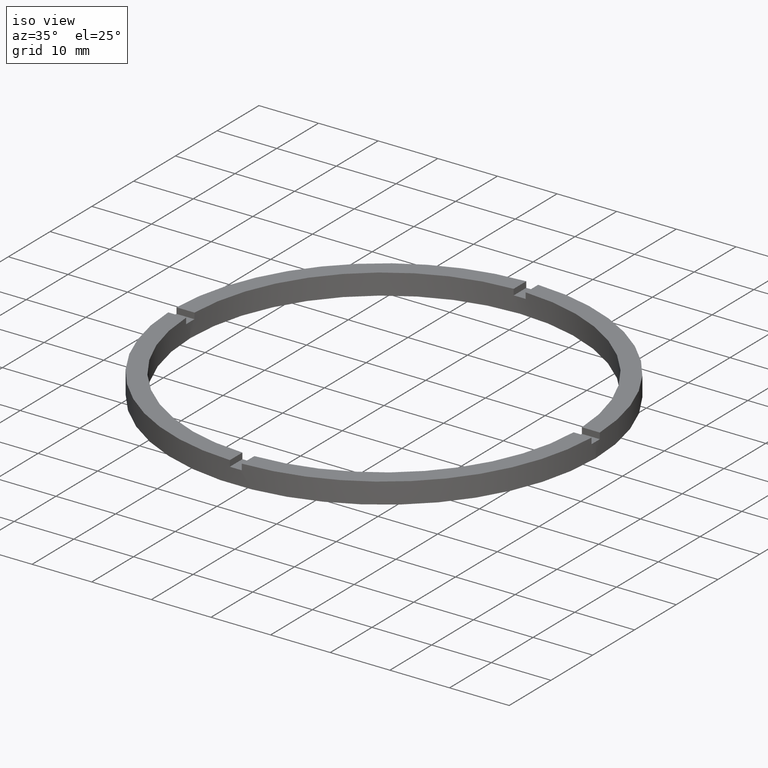
[diagram: clean part render]
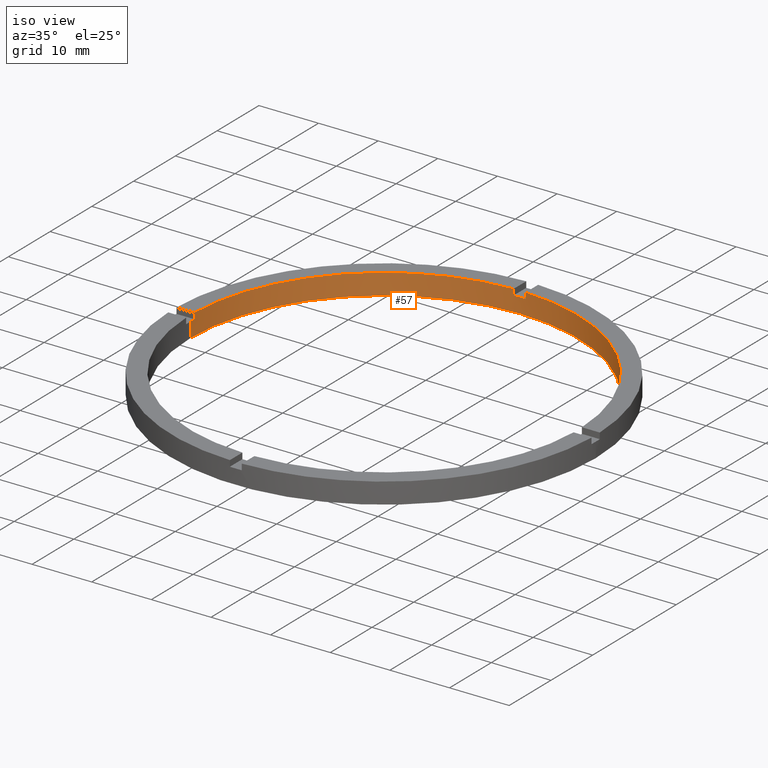
[diagram: same view with one face highlighted and labeled with its STEP entity id]
A machine part, iso view. The second image highlights one B-rep face of the part: STEP entity #57.
In plain terms, the highlighted cylindrical surface (partial cylindrical patch) has radius 32.5 mm, axis along (-0, -0, -1).
Its self-contained STEP definition (entity closure, byte-faithful):
#8 = CARTESIAN_POINT ( 'NONE',  ( 0.000000000000000000, 0.000000000000000000, 2.500000000000000000 ) ) ;
#12 = CARTESIAN_POINT ( 'NONE',  ( -32.50000000000000000, 0.000000000000000000, 3.500000000000000000 ) ) ;
#15 = CARTESIAN_POINT ( 'NONE',  ( 0.9999999999999751310, 32.48461174156157227, 2.500000000000000000 ) ) ;
#27 = DIRECTION ( 'NONE',  ( 0.000000000000000000, 0.000000000000000000, 1.000000000000000000 ) ) ;
#41 = EDGE_CURVE ( 'NONE', #183, #475, #696, .T. ) ;
#44 = CARTESIAN_POINT ( 'NONE',  ( 0.000000000000000000, 0.000000000000000000, 3.500000000000000000 ) ) ;
#49 = DIRECTION ( 'NONE',  ( -0.000000000000000000, -0.000000000000000000, -1.000000000000000000 ) ) ;
#57 = ADVANCED_FACE ( 'NONE', ( #408 ), #447, .F. ) ;
#67 = VECTOR ( 'NONE', #434, 1000.000000000000000 ) ;
#77 = DIRECTION ( 'NONE',  ( 1.000000000000000000, 0.000000000000000000, 0.000000000000000000 ) ) ;
#85 = ORIENTED_EDGE ( 'NONE', *, *, #558, .T. ) ;
#91 = ORIENTED_EDGE ( 'NONE', *, *, #567, .T. ) ;
#92 = ORIENTED_EDGE ( 'NONE', *, *, #736, .T. ) ;
#94 = ORIENTED_EDGE ( 'NONE', *, *, #131, .T. ) ;
#105 = EDGE_CURVE ( 'NONE', #725, #708, #707, .T. ) ;
#106 = DIRECTION ( 'NONE',  ( -0.000000000000000000, -0.000000000000000000, -1.000000000000000000 ) ) ;
#112 = DIRECTION ( 'NONE',  ( 1.000000000000000000, 0.000000000000000000, 0.000000000000000000 ) ) ;
#130 = CARTESIAN_POINT ( 'NONE',  ( 0.000000000000000000, 0.000000000000000000, 2.500000000000000000 ) ) ;
#131 = EDGE_CURVE ( 'NONE', #176, #473, #136, .T. ) ;
#134 = ORIENTED_EDGE ( 'NONE', *, *, #323, .T. ) ;
#136 = LINE ( 'NONE', #12, #440 ) ;
#152 = CARTESIAN_POINT ( 'NONE',  ( 32.48461174156157938, 0.9999999999998419042, 2.500000000000000000 ) ) ;
#167 = VECTOR ( 'NONE', #527, 1000.000000000000000 ) ;
#173 = VECTOR ( 'NONE', #106, 1000.000000000000000 ) ;
#175 = CARTESIAN_POINT ( 'NONE',  ( -32.48461174156157227, 0.9999999999999737987, 2.500000000000000000 ) ) ;
#176 = VERTEX_POINT ( 'NONE', #313 ) ;
#177 = EDGE_CURVE ( 'NONE', #221, #473, #698, .T. ) ;
#180 = VERTEX_POINT ( 'NONE', #175 ) ;
#183 = VERTEX_POINT ( 'NONE', #573 ) ;
#187 = VERTEX_POINT ( 'NONE', #15 ) ;
#221 = VERTEX_POINT ( 'NONE', #260 ) ;
#227 = CARTESIAN_POINT ( 'NONE',  ( 0.000000000000000000, 0.000000000000000000, 3.500000000000000000 ) ) ;
#232 = ORIENTED_EDGE ( 'NONE', *, *, #611, .F. ) ;
#234 = ORIENTED_EDGE ( 'NONE', *, *, #41, .T. ) ;
#248 = DIRECTION ( 'NONE',  ( -1.000000000000000000, 0.000000000000000000, 0.000000000000000000 ) ) ;
#259 = CARTESIAN_POINT ( 'NONE',  ( 32.50000000000000000, 3.980102097228898626E-15, 3.500000000000000000 ) ) ;
#260 = CARTESIAN_POINT ( 'NONE',  ( 32.50000000000000000, 3.980102097228898626E-15, 0.000000000000000000 ) ) ;
#263 = CARTESIAN_POINT ( 'NONE',  ( -1.000000000000024869, 32.48461174156157227, 3.500000000000000000 ) ) ;
#264 = EDGE_CURVE ( 'NONE', #187, #475, #702, .T. ) ;
#265 = CARTESIAN_POINT ( 'NONE',  ( 0.000000000000000000, 0.000000000000000000, 2.500000000000000000 ) ) ;
#269 = DIRECTION ( 'NONE',  ( 1.000000000000000000, 0.000000000000000000, 0.000000000000000000 ) ) ;
#273 = EDGE_CURVE ( 'NONE', #180, #714, #706, .T. ) ;
#277 = CIRCLE ( 'NONE', #594, 32.50000000000000000 ) ;
#286 = CARTESIAN_POINT ( 'NONE',  ( 32.48461174156157938, 0.9999999999998419042, 3.500000000000000000 ) ) ;
#312 = CARTESIAN_POINT ( 'NONE',  ( -32.50000000000000000, 0.000000000000000000, 0.000000000000000000 ) ) ;
#313 = CARTESIAN_POINT ( 'NONE',  ( -32.50000000000000000, 0.000000000000000000, 2.500000000000000000 ) ) ;
#314 = CARTESIAN_POINT ( 'NONE',  ( -1.000000000000024869, 32.48461174156157227, 2.500000000000000000 ) ) ;
#323 = EDGE_CURVE ( 'NONE', #187, #708, #684, .T. ) ;
#343 = CIRCLE ( 'NONE', #644, 32.50000000000000000 ) ;
#344 = AXIS2_PLACEMENT_3D ( 'NONE', #525, #439, #454 ) ;
#359 = EDGE_LOOP ( 'NONE', ( #746, #91, #232, #234, #485, #134, #504, #92, #753, #85, #94, #676 ) ) ;
#367 = LINE ( 'NONE', #286, #617 ) ;
#388 = VERTEX_POINT ( 'NONE', #152 ) ;
#389 = CARTESIAN_POINT ( 'NONE',  ( 32.50000000000000000, 3.980102097228898626E-15, 2.500000000000000000 ) ) ;
#400 = DIRECTION ( 'NONE',  ( 0.000000000000000000, 0.000000000000000000, 1.000000000000000000 ) ) ;
#408 = FACE_OUTER_BOUND ( 'NONE', #359, .T. ) ;
#413 = DIRECTION ( 'NONE',  ( -0.000000000000000000, -0.000000000000000000, -1.000000000000000000 ) ) ;
#419 = CARTESIAN_POINT ( 'NONE',  ( 0.9999999999999751310, 32.48461174156157227, 3.500000000000000000 ) ) ;
#434 = DIRECTION ( 'NONE',  ( -0.000000000000000000, -0.000000000000000000, -1.000000000000000000 ) ) ;
#439 = DIRECTION ( 'NONE',  ( 0.000000000000000000, 0.000000000000000000, 1.000000000000000000 ) ) ;
#440 = VECTOR ( 'NONE', #49, 1000.000000000000000 ) ;
#447 = CYLINDRICAL_SURFACE ( 'NONE', #549, 32.50000000000000000 ) ;
#454 = DIRECTION ( 'NONE',  ( 1.000000000000000000, 0.000000000000000000, 0.000000000000000000 ) ) ;
#473 = VERTEX_POINT ( 'NONE', #312 ) ;
#475 = VERTEX_POINT ( 'NONE', #645 ) ;
#485 = ORIENTED_EDGE ( 'NONE', *, *, #264, .F. ) ;
#504 = ORIENTED_EDGE ( 'NONE', *, *, #105, .F. ) ;
#516 = DIRECTION ( 'NONE',  ( 0.000000000000000000, 0.000000000000000000, 1.000000000000000000 ) ) ;
#520 = AXIS2_PLACEMENT_3D ( 'NONE', #547, #400, #553 ) ;
#522 = CARTESIAN_POINT ( 'NONE',  ( -32.48461174156157227, 0.9999999999999737987, 3.500000000000000000 ) ) ;
#525 = CARTESIAN_POINT ( 'NONE',  ( 0.000000000000000000, 0.000000000000000000, 0.000000000000000000 ) ) ;
#526 = AXIS2_PLACEMENT_3D ( 'NONE', #265, #654, #112 ) ;
#527 = DIRECTION ( 'NONE',  ( 0.000000000000000000, 0.000000000000000000, 1.000000000000000000 ) ) ;
#530 = EDGE_CURVE ( 'NONE', #609, #221, #625, .T. ) ;
#547 = CARTESIAN_POINT ( 'NONE',  ( 0.000000000000000000, 0.000000000000000000, 3.500000000000000000 ) ) ;
#549 = AXIS2_PLACEMENT_3D ( 'NONE', #44, #413, #248 ) ;
#553 = DIRECTION ( 'NONE',  ( 1.000000000000000000, 0.000000000000000000, 0.000000000000000000 ) ) ;
#558 = EDGE_CURVE ( 'NONE', #180, #176, #627, .T. ) ;
#567 = EDGE_CURVE ( 'NONE', #609, #388, #343, .T. ) ;
#573 = CARTESIAN_POINT ( 'NONE',  ( 32.48461174156157938, 0.9999999999998419042, 3.500000000000000000 ) ) ;
#578 = CARTESIAN_POINT ( 'NONE',  ( -32.48461174156157227, 0.9999999999999737987, 3.500000000000000000 ) ) ;
#581 = DIRECTION ( 'NONE',  ( 1.000000000000000000, 0.000000000000000000, 0.000000000000000000 ) ) ;
#585 = DIRECTION ( 'NONE',  ( 0.000000000000000000, -0.000000000000000000, 1.000000000000000000 ) ) ;
#594 = AXIS2_PLACEMENT_3D ( 'NONE', #227, #27, #581 ) ;
#609 = VERTEX_POINT ( 'NONE', #389 ) ;
#611 = EDGE_CURVE ( 'NONE', #183, #388, #367, .T. ) ;
#617 = VECTOR ( 'NONE', #668, 1000.000000000000000 ) ;
#625 = LINE ( 'NONE', #259, #67 ) ;
#627 = CIRCLE ( 'NONE', #526, 32.50000000000000000 ) ;
#644 = AXIS2_PLACEMENT_3D ( 'NONE', #8, #516, #269 ) ;
#645 = CARTESIAN_POINT ( 'NONE',  ( 0.9999999999999751310, 32.48461174156157227, 3.500000000000000000 ) ) ;
#654 = DIRECTION ( 'NONE',  ( 0.000000000000000000, 0.000000000000000000, 1.000000000000000000 ) ) ;
#665 = DIRECTION ( 'NONE',  ( 0.000000000000000000, 0.000000000000000000, 1.000000000000000000 ) ) ;
#668 = DIRECTION ( 'NONE',  ( -0.000000000000000000, -0.000000000000000000, -1.000000000000000000 ) ) ;
#669 = VECTOR ( 'NONE', #665, 1000.000000000000000 ) ;
#676 = ORIENTED_EDGE ( 'NONE', *, *, #177, .F. ) ;
#684 = CIRCLE ( 'NONE', #760, 32.50000000000000000 ) ;
#693 = CARTESIAN_POINT ( 'NONE',  ( -1.000000000000024869, 32.48461174156157227, 3.500000000000000000 ) ) ;
#696 = CIRCLE ( 'NONE', #520, 32.50000000000000000 ) ;
#698 = CIRCLE ( 'NONE', #344, 32.50000000000000000 ) ;
#702 = LINE ( 'NONE', #419, #167 ) ;
#706 = LINE ( 'NONE', #522, #669 ) ;
#707 = LINE ( 'NONE', #263, #173 ) ;
#708 = VERTEX_POINT ( 'NONE', #314 ) ;
#714 = VERTEX_POINT ( 'NONE', #578 ) ;
#725 = VERTEX_POINT ( 'NONE', #693 ) ;
#736 = EDGE_CURVE ( 'NONE', #725, #714, #277, .T. ) ;
#746 = ORIENTED_EDGE ( 'NONE', *, *, #530, .F. ) ;
#753 = ORIENTED_EDGE ( 'NONE', *, *, #273, .F. ) ;
#760 = AXIS2_PLACEMENT_3D ( 'NONE', #130, #585, #77 ) ;